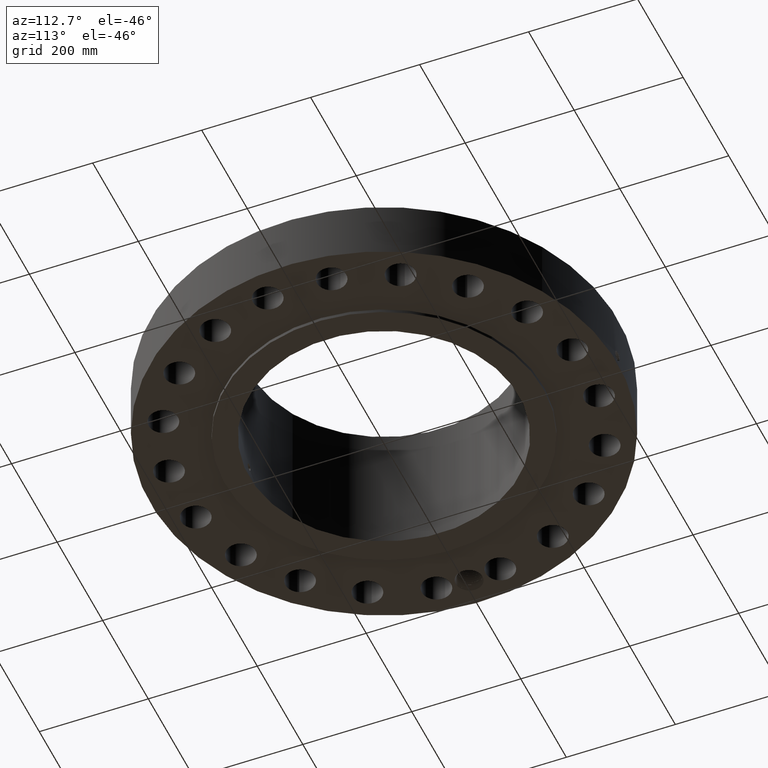
[diagram: clean part render]
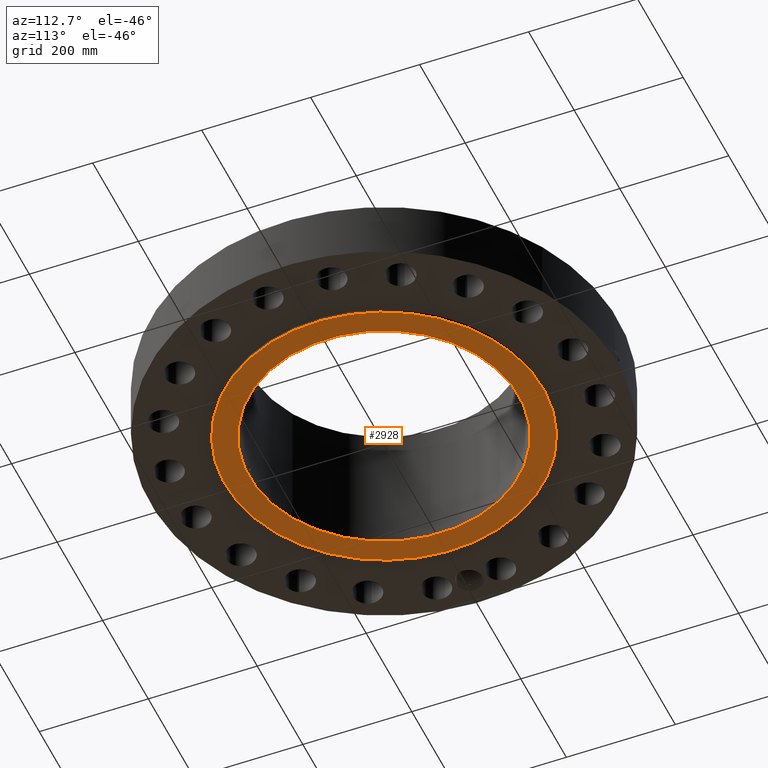
[diagram: same view with one face highlighted and labeled with its STEP entity id]
A machine part, auxiliary view. The second image highlights one B-rep face of the part: STEP entity #2928.
In plain terms, the highlighted planar face has unit normal (0, 0, -1).
Its self-contained STEP definition (entity closure, byte-faithful):
#1577=AXIS2_PLACEMENT_3D('Circle Axis2P3D',#1575,#1576,$) ;
#1603=AXIS2_PLACEMENT_3D('Circle Axis2P3D',#1601,#1602,$) ;
#2904=AXIS2_PLACEMENT_3D('Plane Axis2P3D',#2901,#2902,#2903) ;
#2912=AXIS2_PLACEMENT_3D('Circle Axis2P3D',#2910,#2911,$) ;
#2921=AXIS2_PLACEMENT_3D('Circle Axis2P3D',#2919,#2920,$) ;
#1575=CARTESIAN_POINT('Axis2P3D Location',(0.,0.,1.1189649382E-015)) ;
#1579=CARTESIAN_POINT('Vertex',(5.51339369397,10.0921994618,1.1189649382E-015)) ;
#1581=CARTESIAN_POINT('Vertex',(-5.51339369397,-10.0921994618,1.1189649382E-015)) ;
#1601=CARTESIAN_POINT('Axis2P3D Location',(0.,0.,1.1189649382E-015)) ;
#2901=CARTESIAN_POINT('Axis2P3D Location',(0.,9.75000000004,0.)) ;
#2910=CARTESIAN_POINT('Axis2P3D Location',(0.,0.,0.)) ;
#2914=CARTESIAN_POINT('Vertex',(4.67439900141,8.55642997847,-5.70672118484E-014)) ;
#2916=CARTESIAN_POINT('Vertex',(-4.67439900141,-8.55642997847,-5.70672118484E-014)) ;
#2919=CARTESIAN_POINT('Axis2P3D Location',(0.,0.,0.)) ;
#1576=DIRECTION('Axis2P3D Direction',(0.,0.,-0.0393700787402)) ;
#1602=DIRECTION('Axis2P3D Direction',(0.,0.,-0.0393700787402)) ;
#2902=DIRECTION('Axis2P3D Direction',(0.,0.,-0.0393700787402)) ;
#2903=DIRECTION('Axis2P3D XDirection',(0.0393700787402,0.,0.)) ;
#2911=DIRECTION('Axis2P3D Direction',(0.,0.,-0.0393700787402)) ;
#2920=DIRECTION('Axis2P3D Direction',(0.,0.,-0.0393700787402)) ;
#2907=ORIENTED_EDGE('',*,*,#1605,.T.) ;
#2908=ORIENTED_EDGE('',*,*,#1583,.T.) ;
#2925=ORIENTED_EDGE('',*,*,#2918,.F.) ;
#2926=ORIENTED_EDGE('',*,*,#2923,.F.) ;
#2927=FACE_BOUND('',#2924,.T.) ;
#2928=ADVANCED_FACE('PartBody',(#2909,#2927),#2905,.T.) ;
#1578=CIRCLE('generated circle',#1577,11.5) ;
#1604=CIRCLE('generated circle',#1603,11.5) ;
#2913=CIRCLE('generated circle',#2912,9.75000000004) ;
#2922=CIRCLE('generated circle',#2921,9.75000000004) ;
#1583=EDGE_CURVE('',#1580,#1582,#1578,.T.) ;
#1605=EDGE_CURVE('',#1582,#1580,#1604,.T.) ;
#2918=EDGE_CURVE('',#2915,#2917,#2913,.T.) ;
#2923=EDGE_CURVE('',#2917,#2915,#2922,.T.) ;
#2906=EDGE_LOOP('',(#2907,#2908)) ;
#2924=EDGE_LOOP('',(#2925,#2926)) ;
#2909=FACE_OUTER_BOUND('',#2906,.T.) ;
#2905=PLANE('',#2904) ;
#1580=VERTEX_POINT('',#1579) ;
#1582=VERTEX_POINT('',#1581) ;
#2915=VERTEX_POINT('',#2914) ;
#2917=VERTEX_POINT('',#2916) ;